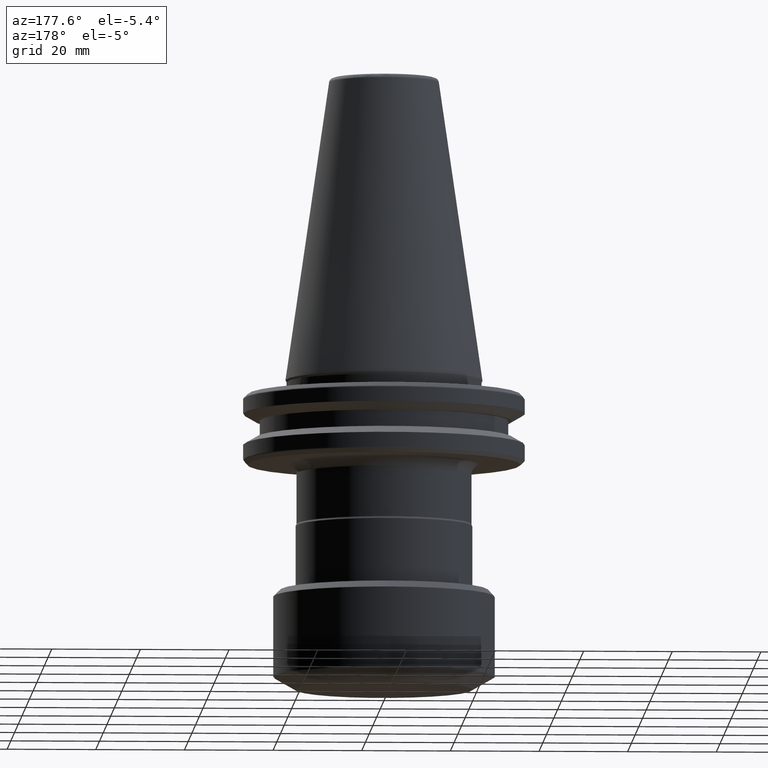
[diagram: clean part render]
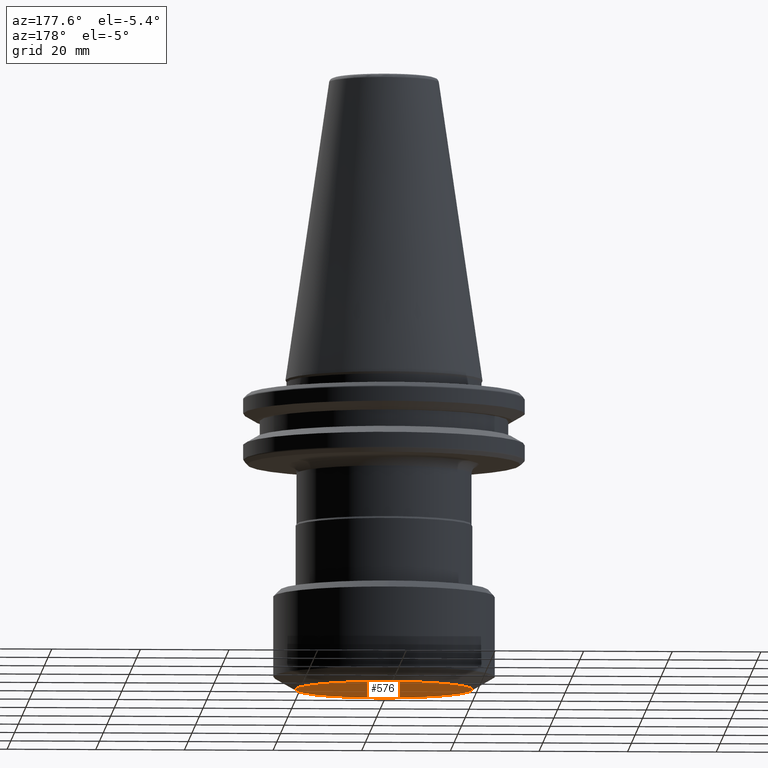
[diagram: same view with one face highlighted and labeled with its STEP entity id]
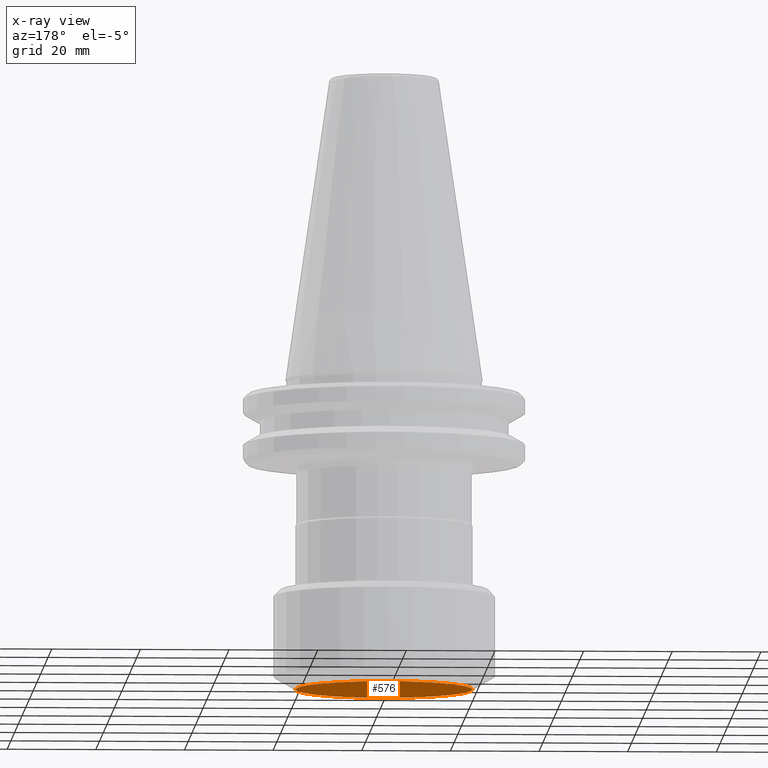
[diagram: x-ray of the same camera — body ghosted, the highlighted face saturated]
A machine part, auxiliary view. The second image highlights one B-rep face of the part: STEP entity #576.
The next image is the same camera in x-ray: the body ghosted, the highlighted face saturated — about 0% of this face is hidden behind the body in this view.
In plain terms, the highlighted planar face has unit normal (0, 0, 1).
Its self-contained STEP definition (entity closure, byte-faithful):
#77 = DIRECTION ( 'NONE',  ( 0.0000000000000000000, -0.0000000000000000000, 1.000000000000000000 ) ) ;
#106 = CARTESIAN_POINT ( 'NONE',  ( 0.0000000000000000000, 0.0000000000000000000, -70.00000000000000000 ) ) ;
#112 = DIRECTION ( 'NONE',  ( 1.000000000000000000, 0.0000000000000000000, 0.0000000000000000000 ) ) ;
#133 = CIRCLE ( 'NONE', #860, 20.00000000000000000 ) ;
#176 = CIRCLE ( 'NONE', #667, 20.00000000000000000 ) ;
#316 = EDGE_CURVE ( 'NONE', #1230, #1346, #176, .T. ) ;
#565 = EDGE_LOOP ( 'NONE', ( #935, #969 ) ) ;
#576 = ADVANCED_FACE ( 'NONE', ( #1397 ), #955, .F. ) ;
#667 = AXIS2_PLACEMENT_3D ( 'NONE', #1390, #1385, #1384 ) ;
#829 = DIRECTION ( 'NONE',  ( 1.000000000000000000, 0.0000000000000000000, -0.0000000000000000000 ) ) ;
#834 = DIRECTION ( 'NONE',  ( 0.0000000000000000000, 0.0000000000000000000, 1.000000000000000000 ) ) ;
#837 = CARTESIAN_POINT ( 'NONE',  ( -20.23999999999999800, -20.23999999999999800, -70.00000000000000000 ) ) ;
#860 = AXIS2_PLACEMENT_3D ( 'NONE', #106, #77, #112 ) ;
#935 = ORIENTED_EDGE ( 'NONE', *, *, #1105, .F. ) ;
#939 = CARTESIAN_POINT ( 'NONE',  ( 20.00000000000000000, 0.0000000000000000000, -70.00000000000000000 ) ) ;
#955 = PLANE ( 'NONE',  #1138 ) ;
#969 = ORIENTED_EDGE ( 'NONE', *, *, #316, .F. ) ;
#1105 = EDGE_CURVE ( 'NONE', #1346, #1230, #133, .T. ) ;
#1138 = AXIS2_PLACEMENT_3D ( 'NONE', #837, #834, #829 ) ;
#1230 = VERTEX_POINT ( 'NONE', #1298 ) ;
#1298 = CARTESIAN_POINT ( 'NONE',  ( -20.00000000000000000, 2.755455298081544800E-015, -70.00000000000000000 ) ) ;
#1346 = VERTEX_POINT ( 'NONE', #939 ) ;
#1384 = DIRECTION ( 'NONE',  ( 1.000000000000000000, 0.0000000000000000000, 0.0000000000000000000 ) ) ;
#1385 = DIRECTION ( 'NONE',  ( 0.0000000000000000000, -0.0000000000000000000, 1.000000000000000000 ) ) ;
#1390 = CARTESIAN_POINT ( 'NONE',  ( 0.0000000000000000000, 0.0000000000000000000, -70.00000000000000000 ) ) ;
#1397 = FACE_OUTER_BOUND ( 'NONE', #565, .T. ) ;